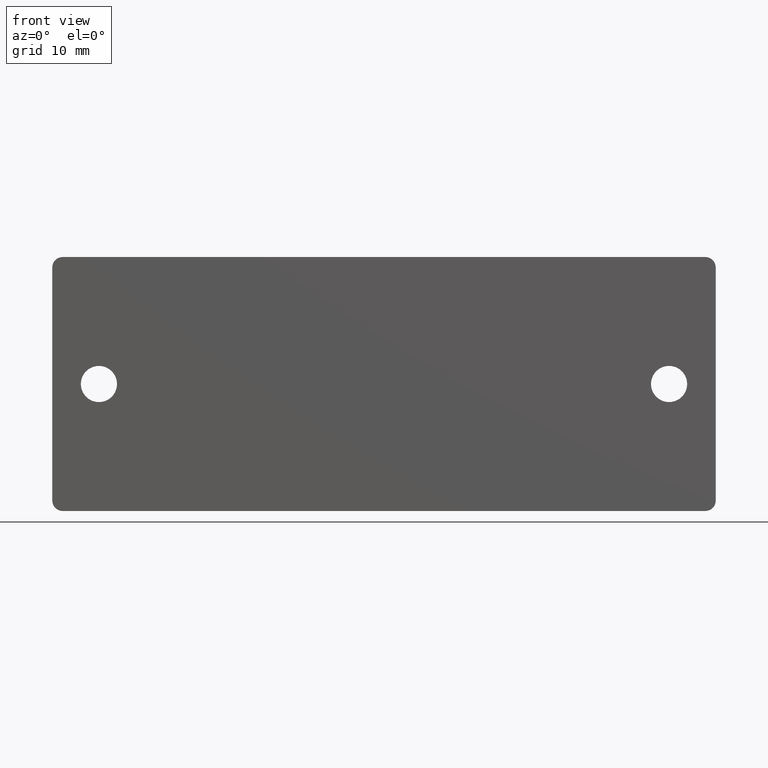
[diagram: clean part render]
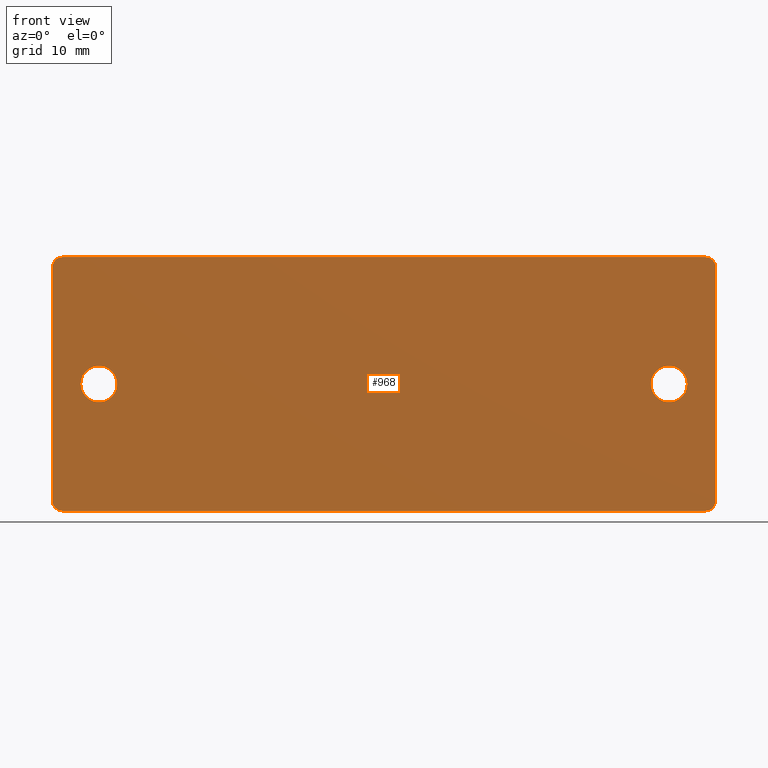
[diagram: same view with one face highlighted and labeled with its STEP entity id]
A machine part, front view. The second image highlights one B-rep face of the part: STEP entity #968.
In plain terms, the highlighted planar face has unit normal (0, -1, 0).
Its self-contained STEP definition (entity closure, byte-faithful):
#42=FACE_BOUND('',#161,.T.);
#43=FACE_BOUND('',#162,.T.);
#59=PLANE('',#1033);
#102=FACE_OUTER_BOUND('',#160,.T.);
#160=EDGE_LOOP('',(#698,#699,#700,#701,#702,#703,#704,#705));
#161=EDGE_LOOP('',(#706));
#162=EDGE_LOOP('',(#707));
#232=CIRCLE('',#1031,1.);
#233=CIRCLE('',#1034,1.);
#234=CIRCLE('',#1035,1.);
#235=CIRCLE('',#1036,1.);
#236=CIRCLE('',#1037,1.75);
#237=CIRCLE('',#1038,1.75);
#258=LINE('',#1427,#360);
#263=LINE('',#1437,#365);
#264=LINE('',#1441,#366);
#265=LINE('',#1445,#367);
#360=VECTOR('',#1135,22.5);
#365=VECTOR('',#1142,62.);
#366=VECTOR('',#1145,22.5);
#367=VECTOR('',#1148,62.);
#468=VERTEX_POINT('',#1420);
#469=VERTEX_POINT('',#1422);
#470=VERTEX_POINT('',#1426);
#474=VERTEX_POINT('',#1436);
#475=VERTEX_POINT('',#1438);
#476=VERTEX_POINT('',#1440);
#477=VERTEX_POINT('',#1442);
#478=VERTEX_POINT('',#1444);
#479=VERTEX_POINT('',#1447);
#480=VERTEX_POINT('',#1449);
#558=EDGE_CURVE('',#468,#469,#232,.T.);
#560=EDGE_CURVE('',#469,#470,#258,.T.);
#565=EDGE_CURVE('',#474,#468,#263,.T.);
#566=EDGE_CURVE('',#475,#474,#233,.T.);
#567=EDGE_CURVE('',#476,#475,#264,.T.);
#568=EDGE_CURVE('',#477,#476,#234,.T.);
#569=EDGE_CURVE('',#478,#477,#265,.T.);
#570=EDGE_CURVE('',#470,#478,#235,.T.);
#571=EDGE_CURVE('',#479,#479,#236,.T.);
#572=EDGE_CURVE('',#480,#480,#237,.T.);
#698=ORIENTED_EDGE('',*,*,#558,.F.);
#699=ORIENTED_EDGE('',*,*,#565,.F.);
#700=ORIENTED_EDGE('',*,*,#566,.F.);
#701=ORIENTED_EDGE('',*,*,#567,.F.);
#702=ORIENTED_EDGE('',*,*,#568,.F.);
#703=ORIENTED_EDGE('',*,*,#569,.F.);
#704=ORIENTED_EDGE('',*,*,#570,.F.);
#705=ORIENTED_EDGE('',*,*,#560,.F.);
#706=ORIENTED_EDGE('',*,*,#571,.T.);
#707=ORIENTED_EDGE('',*,*,#572,.T.);
#968=ADVANCED_FACE('',(#102,#42,#43),#59,.T.);
#1031=AXIS2_PLACEMENT_3D('',#1423,#1130,#1131);
#1033=AXIS2_PLACEMENT_3D('',#1435,#1140,#1141);
#1034=AXIS2_PLACEMENT_3D('',#1439,#1143,#1144);
#1035=AXIS2_PLACEMENT_3D('',#1443,#1146,#1147);
#1036=AXIS2_PLACEMENT_3D('',#1446,#1149,#1150);
#1037=AXIS2_PLACEMENT_3D('',#1448,#1151,#1152);
#1038=AXIS2_PLACEMENT_3D('',#1450,#1153,#1154);
#1130=DIRECTION('center_axis',(0.,0.,1.));
#1131=DIRECTION('ref_axis',(-0.707106781186546,0.707106781186549,0.));
#1135=DIRECTION('',(0.,-1.,0.));
#1140=DIRECTION('center_axis',(0.,0.,-1.));
#1141=DIRECTION('ref_axis',(-1.,0.,0.));
#1142=DIRECTION('',(-1.,0.,0.));
#1143=DIRECTION('center_axis',(0.,0.,1.));
#1144=DIRECTION('ref_axis',(0.707106781186546,0.707106781186549,0.));
#1145=DIRECTION('',(0.,1.,0.));
#1146=DIRECTION('center_axis',(0.,0.,1.));
#1147=DIRECTION('ref_axis',(0.707106781186546,-0.707106781186549,0.));
#1148=DIRECTION('',(1.,0.,0.));
#1149=DIRECTION('center_axis',(0.,0.,1.));
#1150=DIRECTION('ref_axis',(-0.707106781186546,-0.707106781186549,0.));
#1151=DIRECTION('center_axis',(0.,0.,1.));
#1152=DIRECTION('ref_axis',(-1.,0.,0.));
#1153=DIRECTION('center_axis',(0.,0.,1.));
#1154=DIRECTION('ref_axis',(-1.,0.,0.));
#1420=CARTESIAN_POINT('',(-31.,12.25,-7.4));
#1422=CARTESIAN_POINT('',(-32.,11.25,-7.4));
#1423=CARTESIAN_POINT('Origin',(-31.,11.25,-7.3999999999999));
#1426=CARTESIAN_POINT('',(-32.,-11.25,-7.4));
#1427=CARTESIAN_POINT('',(-32.,0.,-7.4));
#1435=CARTESIAN_POINT('Origin',(32.,0.,-7.4));
#1436=CARTESIAN_POINT('',(31.,12.25,-7.4));
#1437=CARTESIAN_POINT('',(-32.,12.25,-7.4));
#1438=CARTESIAN_POINT('',(32.,11.25,-7.4));
#1439=CARTESIAN_POINT('Origin',(31.,11.25,-7.4));
#1440=CARTESIAN_POINT('',(32.,-11.25,-7.4));
#1441=CARTESIAN_POINT('',(32.,0.,-7.4));
#1442=CARTESIAN_POINT('',(31.,-12.25,-7.4));
#1443=CARTESIAN_POINT('Origin',(31.,-11.25,-7.4));
#1444=CARTESIAN_POINT('',(-31.,-12.25,-7.4));
#1445=CARTESIAN_POINT('',(-32.,-12.25,-7.4));
#1446=CARTESIAN_POINT('Origin',(-31.,-11.25,-7.3999999999999));
#1447=CARTESIAN_POINT('',(29.25,4.91868946007076E-16,-7.4));
#1448=CARTESIAN_POINT('Origin',(27.5,2.77555756156289E-16,-7.4));
#1449=CARTESIAN_POINT('',(-25.75,-6.3242566305502E-17,-7.4));
#1450=CARTESIAN_POINT('Origin',(-27.5,-2.77555756156289E-16,-7.4));